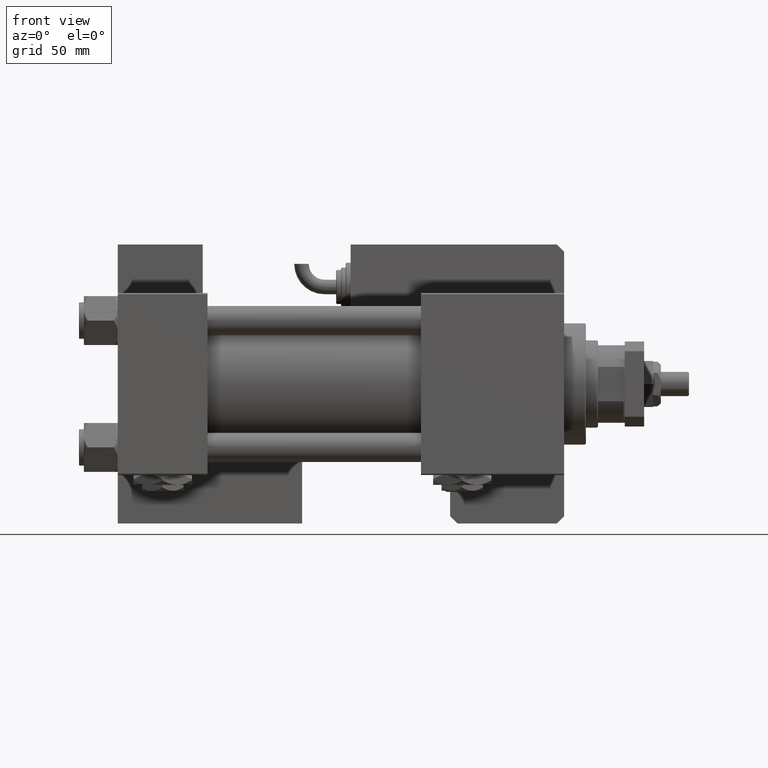
[diagram: clean part render]
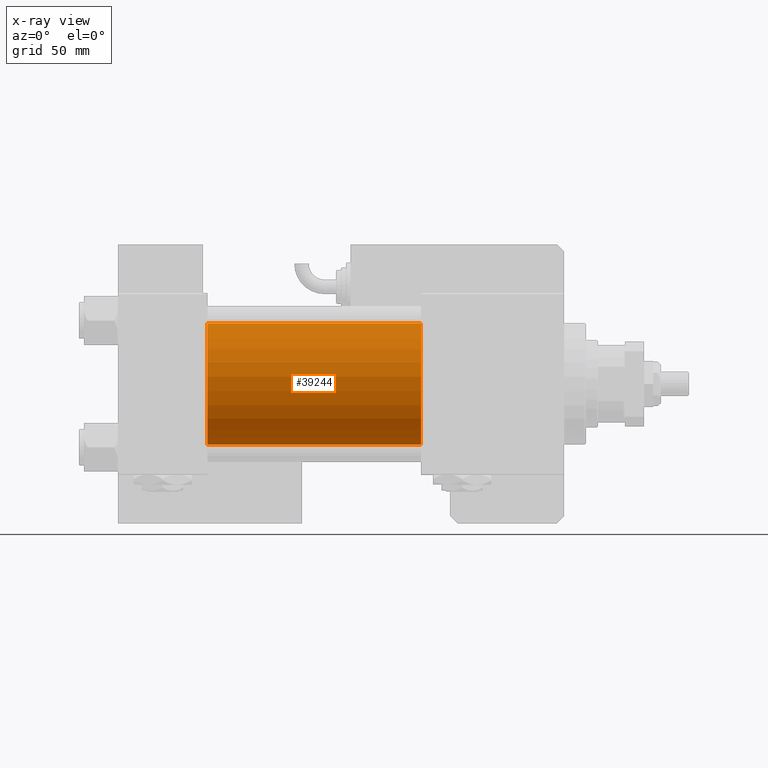
[diagram: x-ray — body ghosted, one internal face saturated and labeled with its STEP entity id]
A machine part, front view, then the same camera in x-ray: the body is ghosted and one INTERNAL B-rep face — a face not visible from any outside direction — is saturated and labeled: STEP entity #39244.
In plain terms, the highlighted cylindrical surface (partial cylindrical patch) has radius 25 mm, axis along (-1, -0, -0).
Its self-contained STEP definition (entity closure, byte-faithful):
#517 = EDGE_CURVE ( 'NONE', #24113, #9819, #53022, .T. ) ;
#934 = CARTESIAN_POINT ( 'NONE',  ( 37.00000000000000000, -2.602085213965210642E-15, 25.00000000000000000 ) ) ;
#1256 = CARTESIAN_POINT ( 'NONE',  ( 125.0000000000000000, -2.602085213965210642E-15, 25.00000000000000000 ) ) ;
#1360 = CYLINDRICAL_SURFACE ( 'NONE', #2330, 25.00000000000000000 ) ;
#2330 = AXIS2_PLACEMENT_3D ( 'NONE', #28884, #28303, #55576 ) ;
#3488 = LINE ( 'NONE', #48316, #45502 ) ;
#4116 = DIRECTION ( 'NONE',  ( 0.000000000000000000, 0.000000000000000000, -1.000000000000000000 ) ) ;
#6646 = DIRECTION ( 'NONE',  ( 0.000000000000000000, 0.000000000000000000, -1.000000000000000000 ) ) ;
#7388 = ORIENTED_EDGE ( 'NONE', *, *, #49926, .T. ) ;
#8147 = DIRECTION ( 'NONE',  ( -1.000000000000000000, -0.000000000000000000, -0.000000000000000000 ) ) ;
#9154 = CIRCLE ( 'NONE', #11058, 25.00000000000000000 ) ;
#9819 = VERTEX_POINT ( 'NONE', #48620 ) ;
#11058 = AXIS2_PLACEMENT_3D ( 'NONE', #25381, #47391, #6646 ) ;
#13880 = EDGE_LOOP ( 'NONE', ( #7388, #27889, #57579, #23305 ) ) ;
#23305 = ORIENTED_EDGE ( 'NONE', *, *, #42547, .F. ) ;
#24113 = VERTEX_POINT ( 'NONE', #934 ) ;
#24837 = CARTESIAN_POINT ( 'NONE',  ( 125.0000000000000000, 4.595317839031724996E-16, -25.00000000000000000 ) ) ;
#25381 = CARTESIAN_POINT ( 'NONE',  ( 125.0000000000000000, -2.602085213965210642E-15, 0.000000000000000000 ) ) ;
#27889 = ORIENTED_EDGE ( 'NONE', *, *, #38883, .T. ) ;
#28303 = DIRECTION ( 'NONE',  ( -1.000000000000000000, -0.000000000000000000, -0.000000000000000000 ) ) ;
#28884 = CARTESIAN_POINT ( 'NONE',  ( 125.0000000000000000, -2.602085213965210642E-15, 0.000000000000000000 ) ) ;
#31072 = CARTESIAN_POINT ( 'NONE',  ( 37.00000000000000000, -2.602085213965210642E-15, 0.000000000000000000 ) ) ;
#38523 = CARTESIAN_POINT ( 'NONE',  ( 125.0000000000000000, 4.595317839031724996E-16, -25.00000000000000000 ) ) ;
#38883 = EDGE_CURVE ( 'NONE', #57405, #9819, #41601, .T. ) ;
#39244 = ADVANCED_FACE ( 'NONE', ( #50286 ), #1360, .F. ) ;
#41601 = LINE ( 'NONE', #24837, #46299 ) ;
#42547 = EDGE_CURVE ( 'NONE', #43259, #24113, #3488, .T. ) ;
#43259 = VERTEX_POINT ( 'NONE', #1256 ) ;
#45502 = VECTOR ( 'NONE', #8147, 1000.000000000000000 ) ;
#46299 = VECTOR ( 'NONE', #55357, 1000.000000000000000 ) ;
#46468 = AXIS2_PLACEMENT_3D ( 'NONE', #31072, #47801, #4116 ) ;
#47391 = DIRECTION ( 'NONE',  ( 1.000000000000000000, 0.000000000000000000, 0.000000000000000000 ) ) ;
#47801 = DIRECTION ( 'NONE',  ( 1.000000000000000000, 0.000000000000000000, 0.000000000000000000 ) ) ;
#48316 = CARTESIAN_POINT ( 'NONE',  ( 125.0000000000000000, -2.602085213965210642E-15, 25.00000000000000000 ) ) ;
#48620 = CARTESIAN_POINT ( 'NONE',  ( 37.00000000000000000, 4.595317839031724996E-16, -25.00000000000000000 ) ) ;
#49926 = EDGE_CURVE ( 'NONE', #43259, #57405, #9154, .T. ) ;
#50286 = FACE_OUTER_BOUND ( 'NONE', #13880, .T. ) ;
#53022 = CIRCLE ( 'NONE', #46468, 25.00000000000000000 ) ;
#55357 = DIRECTION ( 'NONE',  ( -1.000000000000000000, -0.000000000000000000, -0.000000000000000000 ) ) ;
#55576 = DIRECTION ( 'NONE',  ( 0.000000000000000000, 0.000000000000000000, 1.000000000000000000 ) ) ;
#57405 = VERTEX_POINT ( 'NONE', #38523 ) ;
#57579 = ORIENTED_EDGE ( 'NONE', *, *, #517, .F. ) ;